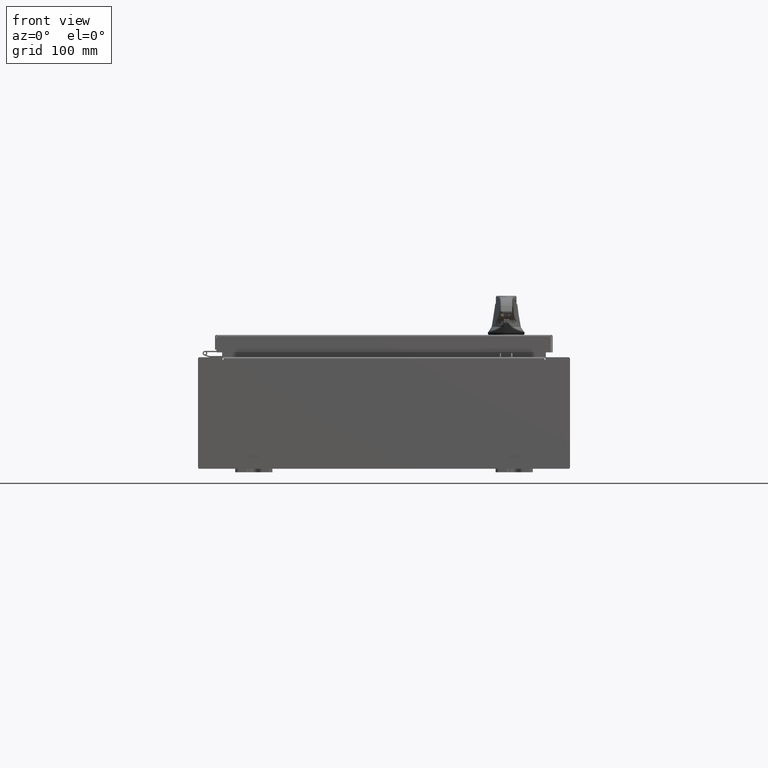
[diagram: clean part render]
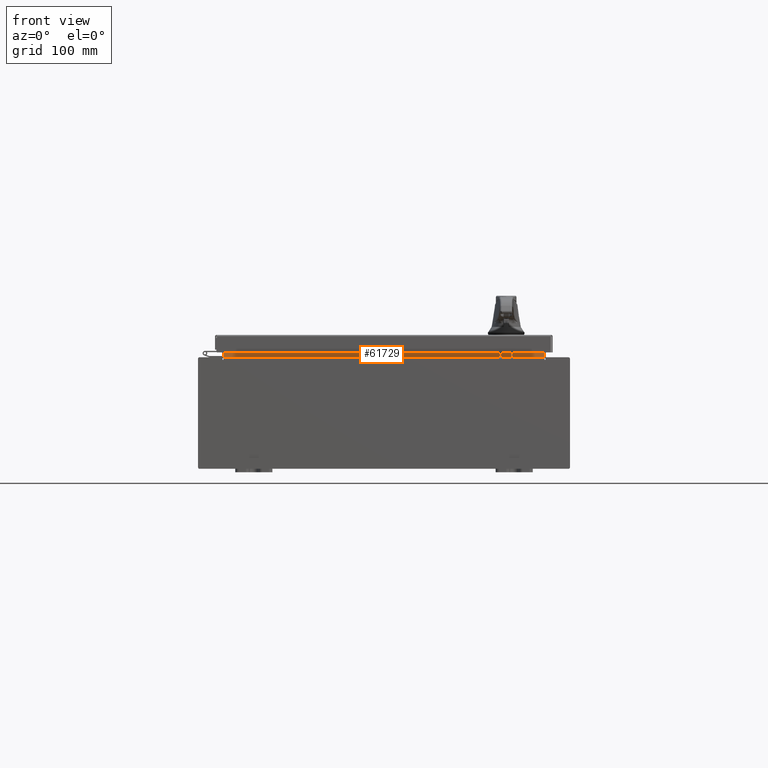
[diagram: same view with one face highlighted and labeled with its STEP entity id]
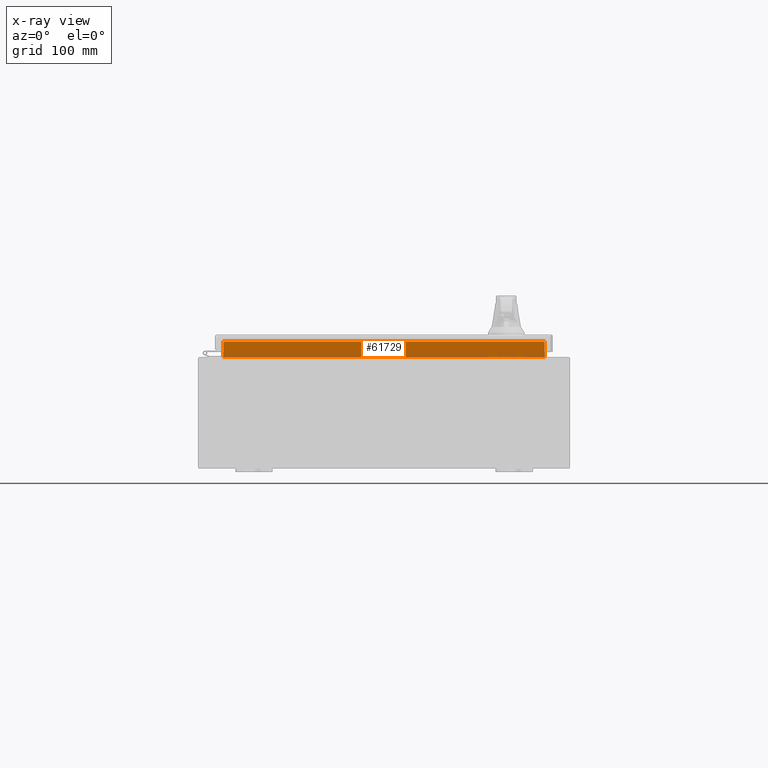
[diagram: x-ray of the same camera — body ghosted, the highlighted face saturated]
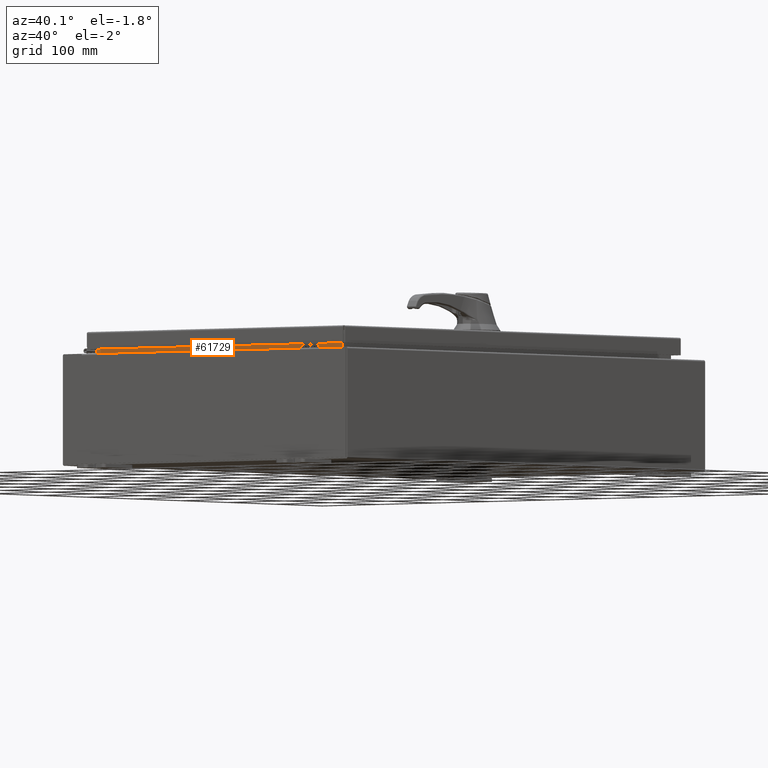
[diagram: same view with one face highlighted and labeled with its STEP entity id]
A machine part, front view. The second image highlights one B-rep face of the part: STEP entity #61729.
The next image is the same camera in x-ray: the body ghosted, the highlighted face saturated — about 0% of this face is hidden behind the body in this view.
A second angle (auxiliary view) of the same face is appended — the face is thin or edge-on in the first view.
In plain terms, the highlighted planar face has unit normal (0, -1, 0).
Its self-contained STEP definition (entity closure, byte-faithful):
#2755 = VERTEX_POINT ( 'NONE', #66549 ) ;
#4842 = VECTOR ( 'NONE', #78736, 39.37007874015748100 ) ;
#6208 = VERTEX_POINT ( 'NONE', #74164 ) ;
#11338 = EDGE_CURVE ( 'NONE', #6208, #45649, #115275, .T. ) ;
#13199 = EDGE_CURVE ( 'NONE', #2755, #6208, #80739, .T. ) ;
#30737 = DIRECTION ( 'NONE',  ( 0.0000000000000000000, 1.000000000000000000, 0.0000000000000000000 ) ) ;
#34511 = VERTEX_POINT ( 'NONE', #112317 ) ;
#35389 = LINE ( 'NONE', #104931, #59736 ) ;
#41413 = ORIENTED_EDGE ( 'NONE', *, *, #73343, .F. ) ;
#45201 = VECTOR ( 'NONE', #63266, 39.37007874015748100 ) ;
#45649 = VERTEX_POINT ( 'NONE', #100859 ) ;
#49195 = CARTESIAN_POINT ( 'NONE',  ( -8.637200000000000000, -1.300299999999999800, 3.013000000000005200 ) ) ;
#58352 = DIRECTION ( 'NONE',  ( 0.0000000000000000000, -0.0000000000000000000, 1.000000000000000000 ) ) ;
#59736 = VECTOR ( 'NONE', #113721, 39.37007874015748100 ) ;
#61027 = ORIENTED_EDGE ( 'NONE', *, *, #13199, .F. ) ;
#61729 = ADVANCED_FACE ( 'NONE', ( #65393 ), #94694, .T. ) ;
#62394 = CARTESIAN_POINT ( 'NONE',  ( -8.637200000000000000, -1.300299999999999800, 3.000000000000005300 ) ) ;
#63266 = DIRECTION ( 'NONE',  ( -0.0000000000000000000, -0.0000000000000000000, 1.000000000000000000 ) ) ;
#65393 = FACE_OUTER_BOUND ( 'NONE', #96343, .T. ) ;
#66549 = CARTESIAN_POINT ( 'NONE',  ( -8.637200000000000000, -1.300299999999999800, 3.013000000000004800 ) ) ;
#67943 = CARTESIAN_POINT ( 'NONE',  ( 8.637200000000000000, -1.300299999999999800, 3.925300000000005300 ) ) ;
#70955 = ORIENTED_EDGE ( 'NONE', *, *, #11338, .F. ) ;
#73343 = EDGE_CURVE ( 'NONE', #34511, #2755, #96257, .T. ) ;
#74164 = CARTESIAN_POINT ( 'NONE',  ( 8.637199999999996400, -1.300299999999999800, 3.013000000000004800 ) ) ;
#78736 = DIRECTION ( 'NONE',  ( 1.000000000000000000, 0.0000000000000000000, -6.325772226333218300E-017 ) ) ;
#80739 = LINE ( 'NONE', #49195, #4842 ) ;
#89885 = DIRECTION ( 'NONE',  ( -0.0000000000000000000, -0.0000000000000000000, -1.000000000000000000 ) ) ;
#94694 = PLANE ( 'NONE',  #104153 ) ;
#96257 = LINE ( 'NONE', #62394, #117759 ) ;
#96343 = EDGE_LOOP ( 'NONE', ( #41413, #114597, #70955, #61027 ) ) ;
#100859 = CARTESIAN_POINT ( 'NONE',  ( 8.637200000000000000, -1.300299999999999800, 3.837600000000005000 ) ) ;
#103930 = CARTESIAN_POINT ( 'NONE',  ( 0.0000000000000000000, -1.300299999999999800, 0.0000000000000000000 ) ) ;
#104153 = AXIS2_PLACEMENT_3D ( 'NONE', #103930, #30737, #58352 ) ;
#104931 = CARTESIAN_POINT ( 'NONE',  ( 8.637200000000000000, -1.300300000000000000, 3.837600000000005000 ) ) ;
#105534 = EDGE_CURVE ( 'NONE', #45649, #34511, #35389, .T. ) ;
#112317 = CARTESIAN_POINT ( 'NONE',  ( -8.637200000000000000, -1.300300000000000000, 3.837600000000005000 ) ) ;
#113721 = DIRECTION ( 'NONE',  ( -1.000000000000000000, -0.0000000000000000000, -0.0000000000000000000 ) ) ;
#114597 = ORIENTED_EDGE ( 'NONE', *, *, #105534, .F. ) ;
#115275 = LINE ( 'NONE', #67943, #45201 ) ;
#117759 = VECTOR ( 'NONE', #89885, 39.37007874015748100 ) ;